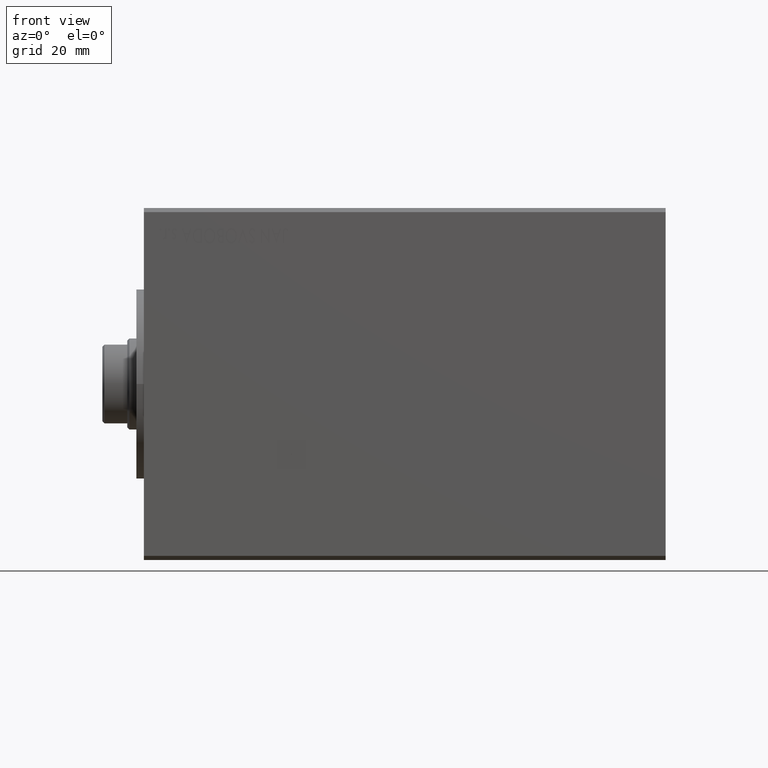
[diagram: clean part render]
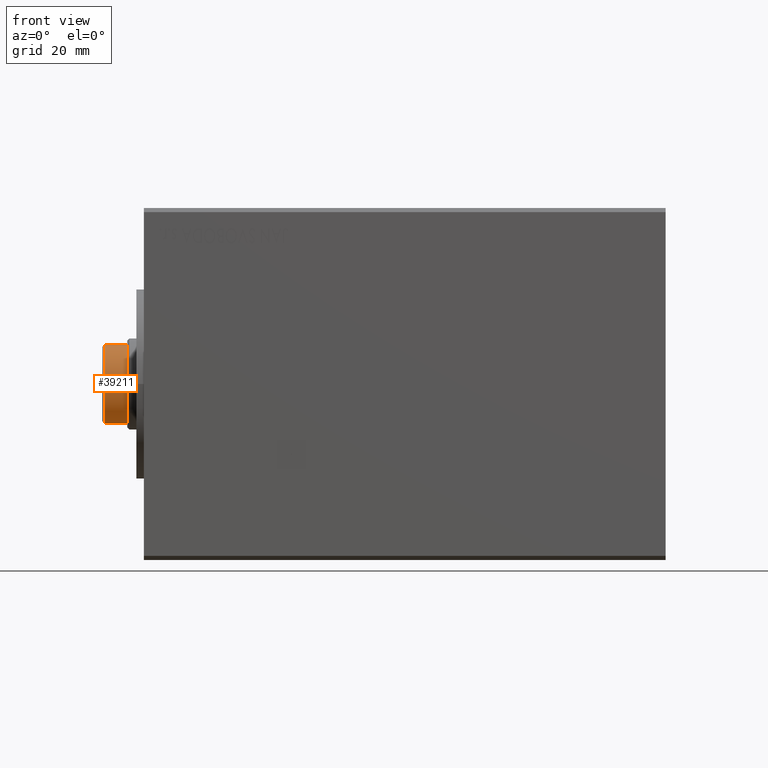
[diagram: same view with one face highlighted and labeled with its STEP entity id]
A machine part, front view. The second image highlights one B-rep face of the part: STEP entity #39211.
In plain terms, the highlighted cylindrical surface (partial cylindrical patch) has radius 10.5 mm, axis along (1, -0, -0).
Its self-contained STEP definition (entity closure, byte-faithful):
#571 = DIRECTION ( 'NONE',  ( 1.000000000000000000, 0.000000000000000000, 0.000000000000000000 ) ) ;
#1852 = CARTESIAN_POINT ( 'NONE',  ( 0.000000000000000000, 0.000000000000000000, 120.7000000000000028 ) ) ;
#2230 = DIRECTION ( 'NONE',  ( 1.000000000000000000, 0.000000000000000000, 0.000000000000000000 ) ) ;
#5332 = VERTEX_POINT ( 'NONE', #6835 ) ;
#5485 = VERTEX_POINT ( 'NONE', #41206 ) ;
#6835 = CARTESIAN_POINT ( 'NONE',  ( -9.500000000000000000, -4.472135954999504115, 120.2000000000000028 ) ) ;
#12278 = ORIENTED_EDGE ( 'NONE', *, *, #33412, .T. ) ;
#15186 = ORIENTED_EDGE ( 'NONE', *, *, #19555, .F. ) ;
#15692 = CARTESIAN_POINT ( 'NONE',  ( 0.000000000000000000, 0.000000000000000000, 114.7000000000000028 ) ) ;
#16127 = EDGE_CURVE ( 'NONE', #25379, #29821, #28173, .T. ) ;
#17144 = EDGE_LOOP ( 'NONE', ( #15186, #27128, #12278, #33390 ) ) ;
#19332 = DIRECTION ( 'NONE',  ( 0.000000000000000000, 0.000000000000000000, 1.000000000000000000 ) ) ;
#19555 = EDGE_CURVE ( 'NONE', #5485, #29821, #44381, .T. ) ;
#19560 = DIRECTION ( 'NONE',  ( -0.000000000000000000, -0.000000000000000000, -1.000000000000000000 ) ) ;
#21631 = AXIS2_PLACEMENT_3D ( 'NONE', #15692, #19332, #2230 ) ;
#21917 = CARTESIAN_POINT ( 'NONE',  ( -9.500000000000000000, -4.472135954999504115, 120.7000000000000028 ) ) ;
#22588 = CARTESIAN_POINT ( 'NONE',  ( 9.500000000000000000, -4.472135954999503227, 114.7000000000000028 ) ) ;
#23410 = DIRECTION ( 'NONE',  ( -1.000000000000000000, 0.000000000000000000, 0.000000000000000000 ) ) ;
#24086 = AXIS2_PLACEMENT_3D ( 'NONE', #1852, #43533, #23410 ) ;
#24891 = DIRECTION ( 'NONE',  ( -0.000000000000000000, -0.000000000000000000, -1.000000000000000000 ) ) ;
#25379 = VERTEX_POINT ( 'NONE', #26249 ) ;
#26249 = CARTESIAN_POINT ( 'NONE',  ( -9.500000000000000000, -4.472135954999503227, 114.7000000000000028 ) ) ;
#27059 = CYLINDRICAL_SURFACE ( 'NONE', #24086, 10.49999999999996803 ) ;
#27128 = ORIENTED_EDGE ( 'NONE', *, *, #32238, .T. ) ;
#27671 = CIRCLE ( 'NONE', #29851, 10.49999999999996803 ) ;
#28173 = CIRCLE ( 'NONE', #21631, 10.49999999999996803 ) ;
#29821 = VERTEX_POINT ( 'NONE', #22588 ) ;
#29851 = AXIS2_PLACEMENT_3D ( 'NONE', #32006, #42501, #571 ) ;
#30264 = CARTESIAN_POINT ( 'NONE',  ( 9.500000000000000000, -4.472135954999504115, 120.7000000000000028 ) ) ;
#30533 = VECTOR ( 'NONE', #19560, 1000.000000000000000 ) ;
#32006 = CARTESIAN_POINT ( 'NONE',  ( 0.000000000000000000, 0.000000000000000000, 120.2000000000000028 ) ) ;
#32238 = EDGE_CURVE ( 'NONE', #5485, #5332, #27671, .T. ) ;
#33058 = FACE_OUTER_BOUND ( 'NONE', #17144, .T. ) ;
#33390 = ORIENTED_EDGE ( 'NONE', *, *, #16127, .T. ) ;
#33412 = EDGE_CURVE ( 'NONE', #5332, #25379, #42671, .T. ) ;
#37158 = VECTOR ( 'NONE', #24891, 1000.000000000000000 ) ;
#39211 = ADVANCED_FACE ( 'NONE', ( #33058 ), #27059, .T. ) ;
#41206 = CARTESIAN_POINT ( 'NONE',  ( 9.500000000000000000, -4.472135954999504115, 120.2000000000000028 ) ) ;
#42501 = DIRECTION ( 'NONE',  ( 0.000000000000000000, 0.000000000000000000, -1.000000000000000000 ) ) ;
#42671 = LINE ( 'NONE', #21917, #37158 ) ;
#43533 = DIRECTION ( 'NONE',  ( -0.000000000000000000, -0.000000000000000000, -1.000000000000000000 ) ) ;
#44381 = LINE ( 'NONE', #30264, #30533 ) ;